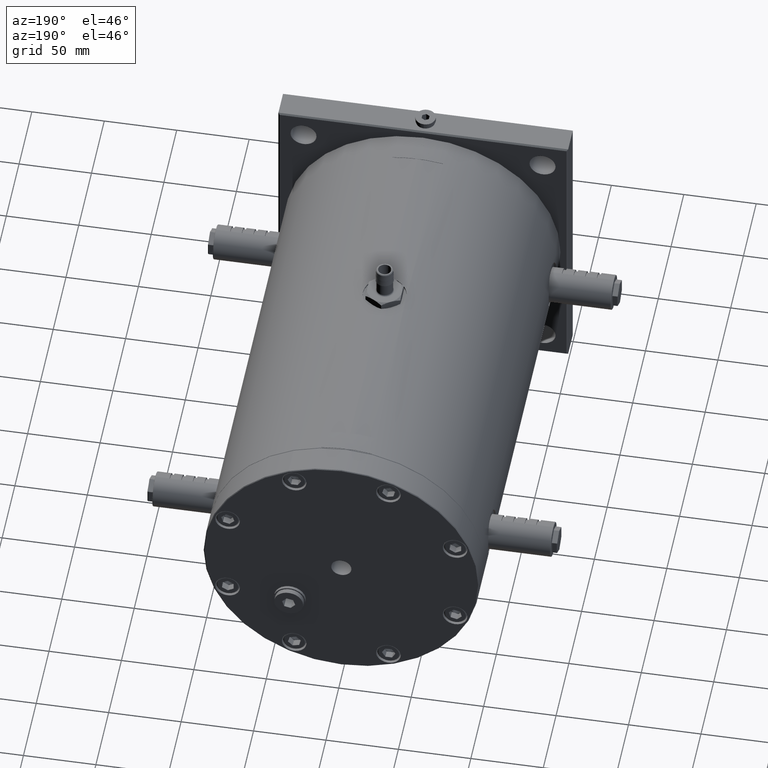
[diagram: clean part render]
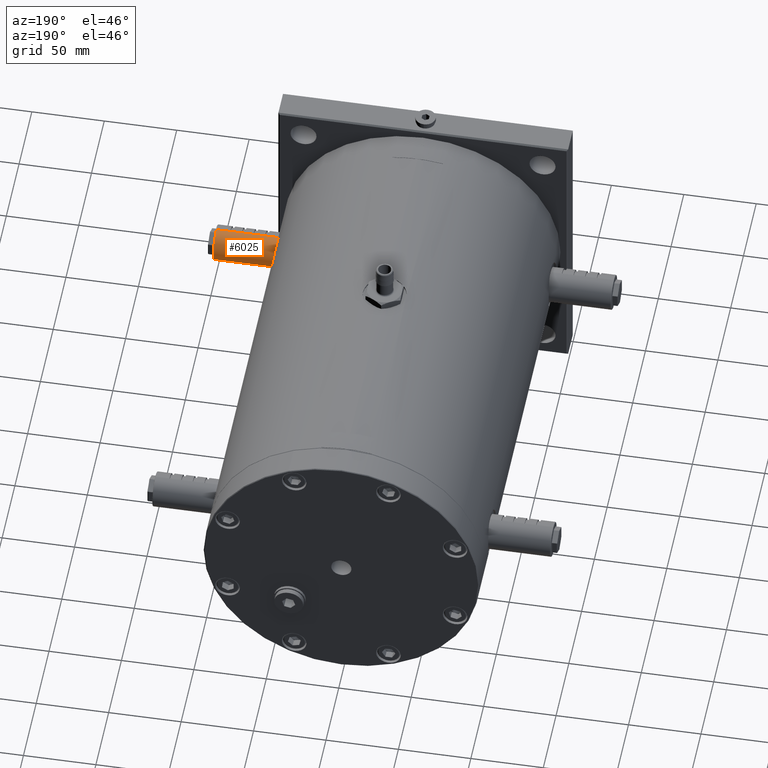
[diagram: same view with one face highlighted and labeled with its STEP entity id]
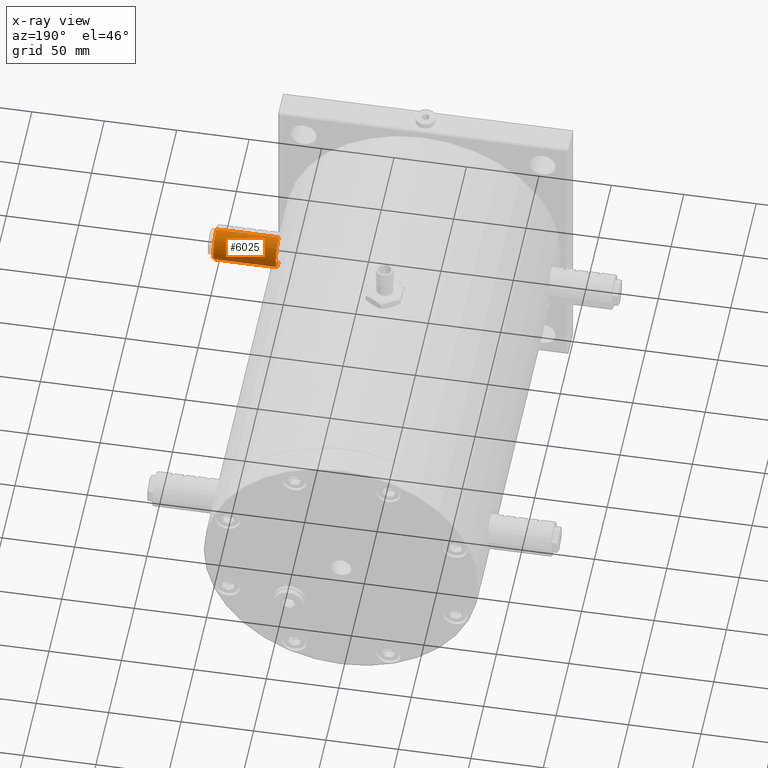
[diagram: x-ray of the same camera — body ghosted, the highlighted face saturated]
A machine part, auxiliary view. The second image highlights one B-rep face of the part: STEP entity #6025.
The next image is the same camera in x-ray: the body ghosted, the highlighted face saturated — about 1% of this face is hidden behind the body in this view.
In plain terms, the highlighted cylindrical surface (edge-blend (fillet) strip) has radius 12 mm, axis along (-1, -0, 0).
Its self-contained STEP definition (entity closure, byte-faithful):
#18 = ORIENTED_EDGE ( 'NONE', *, *, #20180, .F. ) ;
#246 = EDGE_CURVE ( 'NONE', #43252, #22095, #16635, .T. ) ;
#1162 = CARTESIAN_POINT ( 'NONE',  ( 127.5000000000000000, 51.50000000000000000, -12.00000000000000000 ) ) ;
#1514 = CARTESIAN_POINT ( 'NONE',  ( 125.5000000000000000, 51.50000000000000000, -12.00000000000000000 ) ) ;
#1522 = EDGE_CURVE ( 'NONE', #22095, #30785, #43084, .T. ) ;
#1808 = ORIENTED_EDGE ( 'NONE', *, *, #38876, .T. ) ;
#2037 = VECTOR ( 'NONE', #48984, 1000.000000000000000 ) ;
#2256 = CARTESIAN_POINT ( 'NONE',  ( 137.5000000000000000, 51.50000000000000000, -12.00000000000000000 ) ) ;
#2354 = CARTESIAN_POINT ( 'NONE',  ( 137.5000000000000000, 51.50000000000000000, 11.99999999999997300 ) ) ;
#2446 = ORIENTED_EDGE ( 'NONE', *, *, #43906, .F. ) ;
#2808 = CARTESIAN_POINT ( 'NONE',  ( 94.00000000000000000, 51.49999999999997900, 11.99999999999997300 ) ) ;
#3147 = VECTOR ( 'NONE', #9880, 1000.000000000000000 ) ;
#3658 = VERTEX_POINT ( 'NONE', #34147 ) ;
#3678 = CARTESIAN_POINT ( 'NONE',  ( 137.5000000000000000, 51.50000000000000000, 11.99999999999997300 ) ) ;
#3860 = CARTESIAN_POINT ( 'NONE',  ( 137.5000000000000000, 51.50000000000000000, -12.00000000000002800 ) ) ;
#4620 = CARTESIAN_POINT ( 'NONE',  ( 137.5000000000000000, 51.50000000000000000, 12.00000000000000000 ) ) ;
#4652 = EDGE_CURVE ( 'NONE', #24281, #20434, #25008, .T. ) ;
#4697 = LINE ( 'NONE', #4620, #45492 ) ;
#5827 = VECTOR ( 'NONE', #38377, 1000.000000000000000 ) ;
#5890 = VECTOR ( 'NONE', #19935, 1000.000000000000000 ) ;
#6025 = ADVANCED_FACE ( 'NONE', ( #51028 ), #46699, .T. ) ;
#6097 = DIRECTION ( 'NONE',  ( 0.0000000000000000000, 0.0000000000000000000, -1.000000000000000000 ) ) ;
#6165 = ORIENTED_EDGE ( 'NONE', *, *, #27000, .F. ) ;
#6237 = EDGE_CURVE ( 'NONE', #45932, #19802, #16424, .T. ) ;
#6301 = CARTESIAN_POINT ( 'NONE',  ( 109.5000000000000000, 51.50000000000000000, 12.00000000000000000 ) ) ;
#6953 = ORIENTED_EDGE ( 'NONE', *, *, #18641, .T. ) ;
#7010 = LINE ( 'NONE', #37208, #2037 ) ;
#7281 = CARTESIAN_POINT ( 'NONE',  ( 101.5000000000000000, 51.50000000000000000, -12.00000000000000000 ) ) ;
#7745 = CARTESIAN_POINT ( 'NONE',  ( 137.5000000000000000, 51.50000000000000000, 12.00000000000000000 ) ) ;
#7785 = LINE ( 'NONE', #44831, #48573 ) ;
#8142 = LINE ( 'NONE', #2354, #12548 ) ;
#8352 = LINE ( 'NONE', #11113, #5827 ) ;
#8557 = VERTEX_POINT ( 'NONE', #1514 ) ;
#8655 = CARTESIAN_POINT ( 'NONE',  ( 101.5000000000000000, 51.50000000000000000, 12.00000000000000000 ) ) ;
#8889 = DIRECTION ( 'NONE',  ( -1.000000000000000000, -9.784048416010939800E-016, 0.0000000000000000000 ) ) ;
#9563 = VECTOR ( 'NONE', #26641, 1000.000000000000000 ) ;
#9880 = DIRECTION ( 'NONE',  ( 1.000000000000000000, 9.784048416010939800E-016, -0.0000000000000000000 ) ) ;
#10711 = VERTEX_POINT ( 'NONE', #45197 ) ;
#10738 = VECTOR ( 'NONE', #46614, 1000.000000000000000 ) ;
#11113 = CARTESIAN_POINT ( 'NONE',  ( 137.5000000000000000, 51.50000000000000000, -12.00000000000002800 ) ) ;
#11525 = CARTESIAN_POINT ( 'NONE',  ( 137.0000000000000000, 51.49999999999997900, 11.99999999999997300 ) ) ;
#12548 = VECTOR ( 'NONE', #33945, 1000.000000000000000 ) ;
#12608 = CARTESIAN_POINT ( 'NONE',  ( 119.5000000000000000, 51.50000000000000000, 12.00000000000000000 ) ) ;
#13655 = VECTOR ( 'NONE', #21306, 1000.000000000000000 ) ;
#13870 = DIRECTION ( 'NONE',  ( -1.000000000000000000, -9.784048416010939800E-016, 0.0000000000000000000 ) ) ;
#13921 = CARTESIAN_POINT ( 'NONE',  ( 119.5000000000000000, 51.50000000000000000, -12.00000000000000000 ) ) ;
#13994 = VERTEX_POINT ( 'NONE', #20111 ) ;
#14159 = CARTESIAN_POINT ( 'NONE',  ( 137.5000000000000000, 51.50000000000000000, 11.99999999999997300 ) ) ;
#14686 = VERTEX_POINT ( 'NONE', #34256 ) ;
#15055 = DIRECTION ( 'NONE',  ( 0.0000000000000000000, 0.0000000000000000000, 1.000000000000000000 ) ) ;
#15729 = CARTESIAN_POINT ( 'NONE',  ( 109.5000000000000000, 51.50000000000000000, -12.00000000000000000 ) ) ;
#15741 = DIRECTION ( 'NONE',  ( -1.000000000000000000, -9.784048416010939800E-016, 0.0000000000000000000 ) ) ;
#16260 = ORIENTED_EDGE ( 'NONE', *, *, #4652, .F. ) ;
#16297 = EDGE_CURVE ( 'NONE', #10711, #36824, #46621, .T. ) ;
#16424 = LINE ( 'NONE', #3860, #5890 ) ;
#16635 = LINE ( 'NONE', #35102, #20937 ) ;
#16955 = DIRECTION ( 'NONE',  ( 1.000000000000000000, 9.784048416010939800E-016, -0.0000000000000000000 ) ) ;
#17967 = AXIS2_PLACEMENT_3D ( 'NONE', #45695, #37552, #49669 ) ;
#18627 = CARTESIAN_POINT ( 'NONE',  ( 137.5000000000000000, 51.50000000000000000, -12.00000000000000000 ) ) ;
#18641 = EDGE_CURVE ( 'NONE', #30785, #14686, #23109, .T. ) ;
#19802 = VERTEX_POINT ( 'NONE', #1162 ) ;
#19935 = DIRECTION ( 'NONE',  ( -1.000000000000000000, -9.784048416010939800E-016, 0.0000000000000000000 ) ) ;
#20002 = LINE ( 'NONE', #3678, #29852 ) ;
#20111 = CARTESIAN_POINT ( 'NONE',  ( 117.5000000000000000, 51.50000000000000000, 12.00000000000000000 ) ) ;
#20180 = EDGE_CURVE ( 'NONE', #8557, #19802, #45225, .T. ) ;
#20266 = DIRECTION ( 'NONE',  ( -1.000000000000000000, -9.784048416010939800E-016, 0.0000000000000000000 ) ) ;
#20434 = VERTEX_POINT ( 'NONE', #2808 ) ;
#20541 = EDGE_LOOP ( 'NONE', ( #40372, #29639, #33254, #18, #24411, #32131, #1808, #6165, #45853, #21803, #6953, #42216, #16260, #49911, #23889, #40181, #44246, #50833, #2446, #49048 ) ) ;
#20553 = DIRECTION ( 'NONE',  ( -1.000000000000000000, -9.784048416010939800E-016, 0.0000000000000000000 ) ) ;
#20751 = VERTEX_POINT ( 'NONE', #12608 ) ;
#20910 = AXIS2_PLACEMENT_3D ( 'NONE', #29241, #30242, #6097 ) ;
#20933 = AXIS2_PLACEMENT_3D ( 'NONE', #51195, #23194, #15055 ) ;
#20937 = VECTOR ( 'NONE', #15741, 1000.000000000000000 ) ;
#21306 = DIRECTION ( 'NONE',  ( 1.000000000000000000, 9.784048416010939800E-016, -0.0000000000000000000 ) ) ;
#21803 = ORIENTED_EDGE ( 'NONE', *, *, #1522, .T. ) ;
#22095 = VERTEX_POINT ( 'NONE', #22830 ) ;
#22830 = CARTESIAN_POINT ( 'NONE',  ( 103.5000000000000000, 51.50000000000000000, -12.00000000000000000 ) ) ;
#23109 = LINE ( 'NONE', #48764, #30517 ) ;
#23194 = DIRECTION ( 'NONE',  ( 1.000000000000000000, 9.784048416010939800E-016, 0.0000000000000000000 ) ) ;
#23608 = DIRECTION ( 'NONE',  ( -1.000000000000000000, -9.784048416010939800E-016, 0.0000000000000000000 ) ) ;
#23659 = VECTOR ( 'NONE', #13870, 1000.000000000000000 ) ;
#23674 = VECTOR ( 'NONE', #16955, 1000.000000000000000 ) ;
#23889 = ORIENTED_EDGE ( 'NONE', *, *, #28741, .F. ) ;
#24281 = VERTEX_POINT ( 'NONE', #8655 ) ;
#24411 = ORIENTED_EDGE ( 'NONE', *, *, #32483, .T. ) ;
#24817 = CARTESIAN_POINT ( 'NONE',  ( 137.0000000000000000, 51.49999999999997900, -12.00000000000002800 ) ) ;
#25008 = LINE ( 'NONE', #14159, #9563 ) ;
#25457 = LINE ( 'NONE', #7745, #36611 ) ;
#25759 = EDGE_CURVE ( 'NONE', #24281, #44678, #48411, .T. ) ;
#26641 = DIRECTION ( 'NONE',  ( -1.000000000000000000, -9.784048416010939800E-016, 0.0000000000000000000 ) ) ;
#27000 = EDGE_CURVE ( 'NONE', #43252, #3658, #47066, .T. ) ;
#28741 = EDGE_CURVE ( 'NONE', #46100, #44678, #7785, .T. ) ;
#29241 = CARTESIAN_POINT ( 'NONE',  ( 137.5000000000000000, 51.50000000000000000, -2.825872489032520200E-014 ) ) ;
#29639 = ORIENTED_EDGE ( 'NONE', *, *, #42584, .T. ) ;
#29770 = DIRECTION ( 'NONE',  ( -1.000000000000000000, -9.784048416010939800E-016, 0.0000000000000000000 ) ) ;
#29852 = VECTOR ( 'NONE', #20266, 1000.000000000000000 ) ;
#30242 = DIRECTION ( 'NONE',  ( -1.000000000000000000, -9.784048416010939800E-016, 0.0000000000000000000 ) ) ;
#30295 = EDGE_CURVE ( 'NONE', #13994, #48126, #20002, .T. ) ;
#30517 = VECTOR ( 'NONE', #8889, 1000.000000000000000 ) ;
#30785 = VERTEX_POINT ( 'NONE', #7281 ) ;
#31025 = DIRECTION ( 'NONE',  ( -1.000000000000000000, -9.784048416010939800E-016, 0.0000000000000000000 ) ) ;
#31272 = EDGE_CURVE ( 'NONE', #49169, #50623, #25457, .T. ) ;
#32027 = CARTESIAN_POINT ( 'NONE',  ( 137.5000000000000000, 51.50000000000000000, 11.99999999999997300 ) ) ;
#32100 = EDGE_CURVE ( 'NONE', #45709, #49169, #8142, .T. ) ;
#32131 = ORIENTED_EDGE ( 'NONE', *, *, #16297, .F. ) ;
#32483 = EDGE_CURVE ( 'NONE', #8557, #36824, #7010, .T. ) ;
#32552 = EDGE_CURVE ( 'NONE', #48126, #46100, #34132, .T. ) ;
#33254 = ORIENTED_EDGE ( 'NONE', *, *, #6237, .T. ) ;
#33945 = DIRECTION ( 'NONE',  ( -1.000000000000000000, -9.784048416010939800E-016, 0.0000000000000000000 ) ) ;
#34132 = LINE ( 'NONE', #45844, #23659 ) ;
#34147 = CARTESIAN_POINT ( 'NONE',  ( 111.5000000000000000, 51.50000000000000000, -12.00000000000000000 ) ) ;
#34256 = CARTESIAN_POINT ( 'NONE',  ( 94.00000000000000000, 51.49999999999997900, -12.00000000000002800 ) ) ;
#34419 = VECTOR ( 'NONE', #23608, 1000.000000000000000 ) ;
#35102 = CARTESIAN_POINT ( 'NONE',  ( 137.5000000000000000, 51.50000000000000000, -12.00000000000002800 ) ) ;
#36047 = CIRCLE ( 'NONE', #17967, 12.00000000000000000 ) ;
#36143 = EDGE_CURVE ( 'NONE', #14686, #20434, #36644, .T. ) ;
#36290 = LINE ( 'NONE', #32027, #34419 ) ;
#36611 = VECTOR ( 'NONE', #31025, 1000.000000000000000 ) ;
#36644 = CIRCLE ( 'NONE', #20933, 12.00000000000000000 ) ;
#36685 = CARTESIAN_POINT ( 'NONE',  ( 137.5000000000000000, 51.50000000000000000, -12.00000000000000000 ) ) ;
#36824 = VERTEX_POINT ( 'NONE', #13921 ) ;
#37208 = CARTESIAN_POINT ( 'NONE',  ( 137.5000000000000000, 51.50000000000000000, -12.00000000000002800 ) ) ;
#37552 = DIRECTION ( 'NONE',  ( -1.000000000000000000, -9.784048416010939800E-016, -0.0000000000000000000 ) ) ;
#38332 = CARTESIAN_POINT ( 'NONE',  ( 111.5000000000000000, 51.50000000000000000, 12.00000000000000000 ) ) ;
#38377 = DIRECTION ( 'NONE',  ( -1.000000000000000000, -9.784048416010939800E-016, 0.0000000000000000000 ) ) ;
#38876 = EDGE_CURVE ( 'NONE', #10711, #3658, #8352, .T. ) ;
#39359 = VECTOR ( 'NONE', #20553, 1000.000000000000000 ) ;
#39891 = EDGE_CURVE ( 'NONE', #20751, #13994, #4697, .T. ) ;
#40181 = ORIENTED_EDGE ( 'NONE', *, *, #32552, .F. ) ;
#40188 = DIRECTION ( 'NONE',  ( -1.000000000000000000, -9.784048416010939800E-016, 0.0000000000000000000 ) ) ;
#40372 = ORIENTED_EDGE ( 'NONE', *, *, #32100, .F. ) ;
#41904 = CARTESIAN_POINT ( 'NONE',  ( 127.5000000000000000, 51.50000000000000000, 12.00000000000000000 ) ) ;
#42216 = ORIENTED_EDGE ( 'NONE', *, *, #36143, .T. ) ;
#42360 = CARTESIAN_POINT ( 'NONE',  ( 103.5000000000000000, 51.50000000000000000, 12.00000000000000000 ) ) ;
#42584 = EDGE_CURVE ( 'NONE', #45709, #45932, #36047, .T. ) ;
#43084 = LINE ( 'NONE', #44038, #39359 ) ;
#43252 = VERTEX_POINT ( 'NONE', #15729 ) ;
#43906 = EDGE_CURVE ( 'NONE', #50623, #20751, #36290, .T. ) ;
#44038 = CARTESIAN_POINT ( 'NONE',  ( 137.5000000000000000, 51.50000000000000000, -12.00000000000000000 ) ) ;
#44199 = CARTESIAN_POINT ( 'NONE',  ( 125.5000000000000000, 51.50000000000000000, 12.00000000000000000 ) ) ;
#44246 = ORIENTED_EDGE ( 'NONE', *, *, #30295, .F. ) ;
#44678 = VERTEX_POINT ( 'NONE', #42360 ) ;
#44831 = CARTESIAN_POINT ( 'NONE',  ( 137.5000000000000000, 51.50000000000000000, 11.99999999999997300 ) ) ;
#45197 = CARTESIAN_POINT ( 'NONE',  ( 117.5000000000000000, 51.50000000000000000, -12.00000000000000000 ) ) ;
#45225 = LINE ( 'NONE', #36685, #13655 ) ;
#45492 = VECTOR ( 'NONE', #40188, 1000.000000000000000 ) ;
#45695 = CARTESIAN_POINT ( 'NONE',  ( 137.0000000000000000, 51.50000000000000000, -2.825872489032520200E-014 ) ) ;
#45709 = VERTEX_POINT ( 'NONE', #11525 ) ;
#45844 = CARTESIAN_POINT ( 'NONE',  ( 137.5000000000000000, 51.50000000000000000, 12.00000000000000000 ) ) ;
#45853 = ORIENTED_EDGE ( 'NONE', *, *, #246, .T. ) ;
#45932 = VERTEX_POINT ( 'NONE', #24817 ) ;
#46100 = VERTEX_POINT ( 'NONE', #6301 ) ;
#46614 = DIRECTION ( 'NONE',  ( 1.000000000000000000, 9.784048416010939800E-016, -0.0000000000000000000 ) ) ;
#46621 = LINE ( 'NONE', #18627, #10738 ) ;
#46699 = CYLINDRICAL_SURFACE ( 'NONE', #20910, 12.00000000000000000 ) ;
#47066 = LINE ( 'NONE', #2256, #3147 ) ;
#48126 = VERTEX_POINT ( 'NONE', #38332 ) ;
#48225 = CARTESIAN_POINT ( 'NONE',  ( 137.5000000000000000, 51.50000000000000000, 12.00000000000000000 ) ) ;
#48411 = LINE ( 'NONE', #48225, #23674 ) ;
#48573 = VECTOR ( 'NONE', #29770, 1000.000000000000000 ) ;
#48764 = CARTESIAN_POINT ( 'NONE',  ( 137.5000000000000000, 51.50000000000000000, -12.00000000000002800 ) ) ;
#48984 = DIRECTION ( 'NONE',  ( -1.000000000000000000, -9.784048416010939800E-016, 0.0000000000000000000 ) ) ;
#49048 = ORIENTED_EDGE ( 'NONE', *, *, #31272, .F. ) ;
#49169 = VERTEX_POINT ( 'NONE', #41904 ) ;
#49669 = DIRECTION ( 'NONE',  ( 0.0000000000000000000, 0.0000000000000000000, 1.000000000000000000 ) ) ;
#49911 = ORIENTED_EDGE ( 'NONE', *, *, #25759, .T. ) ;
#50623 = VERTEX_POINT ( 'NONE', #44199 ) ;
#50833 = ORIENTED_EDGE ( 'NONE', *, *, #39891, .F. ) ;
#51028 = FACE_OUTER_BOUND ( 'NONE', #20541, .T. ) ;
#51195 = CARTESIAN_POINT ( 'NONE',  ( 94.00000000000000000, 51.50000000000000000, -2.825872489032520200E-014 ) ) ;